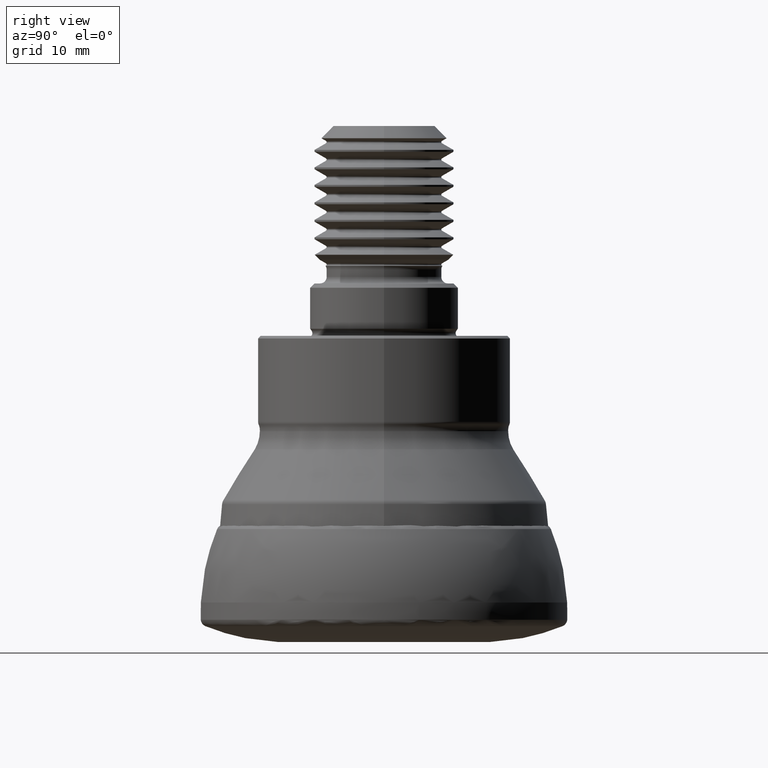
[diagram: clean part render]
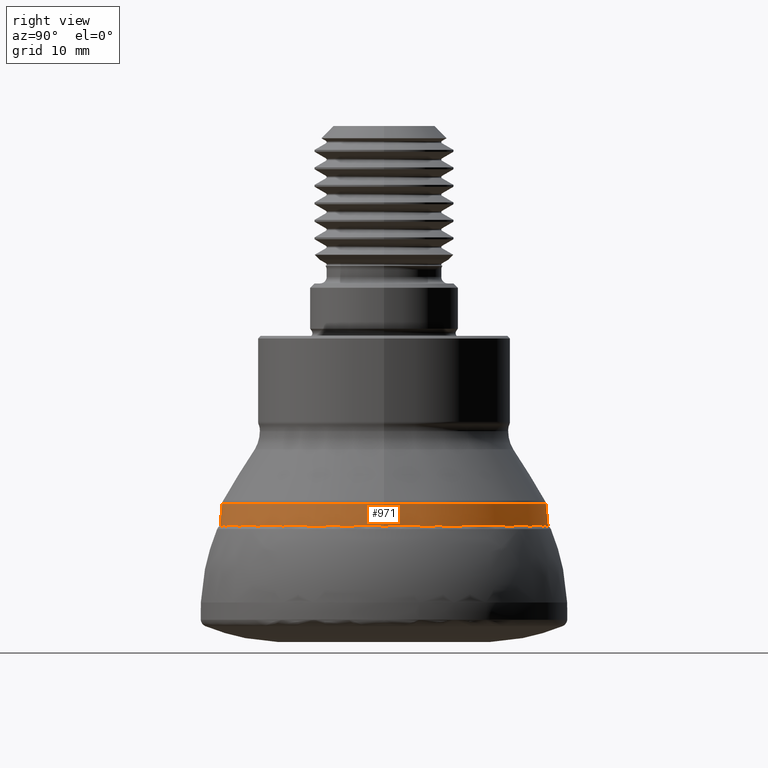
[diagram: same view with one face highlighted and labeled with its STEP entity id]
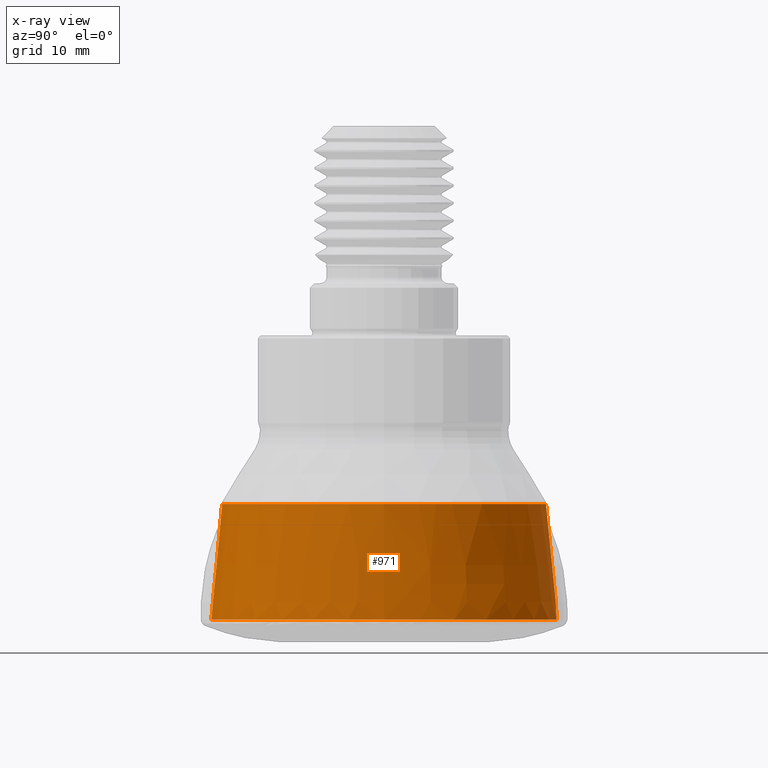
[diagram: x-ray of the same camera — body ghosted, the highlighted face saturated]
A machine part, right view. The second image highlights one B-rep face of the part: STEP entity #971.
The next image is the same camera in x-ray: the body ghosted, the highlighted face saturated — about 0% of this face is hidden behind the body in this view.
In plain terms, the highlighted face is a freeform B-spline surface patch.
Its self-contained STEP definition (entity closure, byte-faithful):
#51 = CARTESIAN_POINT ( 'NONE',  ( -16.54188182131372600, 9.169314821616234600, -11.81882638711169900 ) ) ;
#65 = CARTESIAN_POINT ( 'NONE',  ( -1.831734595264321800, -43.07584216059979100, -8.089627455695481500 ) ) ;
#113 = CARTESIAN_POINT ( 'NONE',  ( 16.83346883224350400, -9.330944141060667700, -8.440132372900899700 ) ) ;
#137 = CARTESIAN_POINT ( 'NONE',  ( 34.88051146454619600, 23.91444882101121300, -11.81882638711169900 ) ) ;
#155 = CARTESIAN_POINT ( 'NONE',  ( -1.818520954020169000, -42.76510460829735600, -9.491696102962970700 ) ) ;
#171 = CARTESIAN_POINT ( 'NONE',  ( -35.30319625904998300, -24.20424600176228200, -9.491696102962970700 ) ) ;
#190 = FACE_OUTER_BOUND ( 'NONE', #2040, .T. ) ;
#214 = CARTESIAN_POINT ( 'NONE',  ( -17.11068818606537800, 9.484609338122021800, -5.285878188508533500 ) ) ;
#225 = CARTESIAN_POINT ( 'NONE',  ( 36.14558660712813100, 24.78179776406671300, -4.935445406074369300 ) ) ;
#235 = CARTESIAN_POINT ( 'NONE',  ( 35.88373461033108900, 24.60226925622222500, -6.337224115881582500 ) ) ;
#256 = CARTESIAN_POINT ( 'NONE',  ( 17.29382868640292900, -9.586125775146712200, -3.235296481638796800 ) ) ;
#270 = FACE_OUTER_BOUND ( 'NONE', #1254, .T. ) ;
#272 = CARTESIAN_POINT ( 'NONE',  ( -36.07990686230942100, -24.73676703400873600, -5.285878188508533500 ) ) ;
#390 = CARTESIAN_POINT ( 'NONE',  ( 16.21216645826516300, -8.986550611475376400, -15.77319747129725000 ) ) ;
#425 = EDGE_CURVE ( 'NONE', #719, #719, #3025, .T. ) ;
#493 = CARTESIAN_POINT ( 'NONE',  ( -17.04859728656652600, 9.450191790516964100, -5.986767523697309900 ) ) ;
#502 = VERTEX_POINT ( 'NONE', #3206 ) ;
#511 = CARTESIAN_POINT ( 'NONE',  ( -16.95597832890527100, 9.398852263949208900, -7.038161305078444800 ) ) ;
#524 = CARTESIAN_POINT ( 'NONE',  ( -35.94898086760045400, -24.64700278261608800, -5.986767523697309000 ) ) ;
#534 = CARTESIAN_POINT ( 'NONE',  ( 1.878422863890495000, 44.17378314795257000, -3.235296481638797200 ) ) ;
#558 = CARTESIAN_POINT ( 'NONE',  ( -1.851786294467402800, -43.54738636365002700, -5.986767523697309000 ) ) ;
#641 = CARTESIAN_POINT ( 'NONE',  ( 1.821812629461055300, 42.84251303422447400, -9.141166674759201500 ) ) ;
#710 = CARTESIAN_POINT ( 'NONE',  ( 16.54188182131372600, -9.169314821616234600, -11.81882638711169900 ) ) ;
#719 = VERTEX_POINT ( 'NONE', #3395 ) ;
#799 = CARTESIAN_POINT ( 'NONE',  ( -17.01765462455511000, 9.433039992887991300, -6.337224115881582500 ) ) ;
#807 = CARTESIAN_POINT ( 'NONE',  ( 17.04859728656652600, -9.450191790516964100, -5.986767523697309900 ) ) ;
#814 = CARTESIAN_POINT ( 'NONE',  ( 1.858530490178665700, 43.70598571025277600, -5.285878188508533500 ) ) ;
#842 = CARTESIAN_POINT ( 'NONE',  ( 1.848425361220873400, 43.46834924199820400, -6.337224115881582500 ) ) ;
#887 = CARTESIAN_POINT ( 'NONE',  ( 1.778633764958150500, 41.82710067218809500, -13.79580889829491900 ) ) ;
#899 = CARTESIAN_POINT ( 'NONE',  ( -16.21216645826516300, 8.986550611475376400, -15.77319747129725000 ) ) ;
#939 = CARTESIAN_POINT ( 'NONE',  ( 35.36709800505620600, 24.24805771696583500, -9.141166674759201500 ) ) ;
#971 = ADVANCED_FACE ( 'NONE', ( #190, #270 ), #1577, .F. ) ;
#984 = DIRECTION ( 'NONE',  ( 1.000000000000000000, 0.0000000000000000000, 0.0000000000000000000 ) ) ;
#1025 = CARTESIAN_POINT ( 'NONE',  ( -35.55971448563842300, -24.38011762014841800, -8.089627455695481500 ) ) ;
#1034 = CARTESIAN_POINT ( 'NONE',  ( -35.49535711436484300, -24.33599352342633900, -8.440132372900899700 ) ) ;
#1064 = CARTESIAN_POINT ( 'NONE',  ( -1.885040101670128100, -44.32939689836793200, -2.560497283552584800 ) ) ;
#1077 = CARTESIAN_POINT ( 'NONE',  ( -36.59454157969641100, -25.08960605768465200, -2.560497283552584800 ) ) ;
#1089 = CARTESIAN_POINT ( 'NONE',  ( -17.11068818606537800, 9.484609338122021800, -5.285878188508533500 ) ) ;
#1101 = CARTESIAN_POINT ( 'NONE',  ( 16.92524469167542700, -9.381816330648641500, -7.388641942850842500 ) ) ;
#1109 = CARTESIAN_POINT ( 'NONE',  ( 17.23326974134722900, -9.552557403755910700, -3.910138665869759200 ) ) ;
#1116 = CARTESIAN_POINT ( 'NONE',  ( -17.35475073901314500, 9.619895420341636700, -2.560497283552584300 ) ) ;
#1152 = CIRCLE ( 'NONE', #2233, 18.53624646909687400 ) ;
#1178 = CARTESIAN_POINT ( 'NONE',  ( -35.68887735297271700, -24.46867305270221500, -7.388641942850842500 ) ) ;
#1235 = CARTESIAN_POINT ( 'NONE',  ( -34.18526768121591200, -23.43778230505494900, -15.77319747129724600 ) ) ;
#1254 = EDGE_LOOP ( 'NONE', ( #1959 ) ) ;
#1270 = CARTESIAN_POINT ( 'NONE',  ( -1.821812629461055300, -42.84251303422447400, -9.141166674759201500 ) ) ;
#1310 = CARTESIAN_POINT ( 'NONE',  ( -1.871845066164591800, -44.01909688645036300, -3.910138665869759200 ) ) ;
#1321 = CARTESIAN_POINT ( 'NONE',  ( -1.861913753023504600, -43.78554794414253600, -4.935445406074369300 ) ) ;
#1335 = CARTESIAN_POINT ( 'NONE',  ( 17.11068818606537800, -9.484609338122021800, -5.285878188508533500 ) ) ;
#1355 = CARTESIAN_POINT ( 'NONE',  ( 17.35475073901314500, -9.619895420341636700, -2.560497283552584300 ) ) ;
#1370 = CARTESIAN_POINT ( 'NONE',  ( -1.858530490178665700, -43.70598571025277600, -5.285878188508533500 ) ) ;
#1421 = ORIENTED_EDGE ( 'NONE', *, *, #425, .F. ) ;
#1427 = CARTESIAN_POINT ( 'NONE',  ( -16.74233765251490900, 9.280429303267538900, -9.491696102962970700 ) ) ;
#1439 = CARTESIAN_POINT ( 'NONE',  ( 16.86398994518705400, -9.347862270225688200, -8.089627455695481500 ) ) ;
#1477 = CARTESIAN_POINT ( 'NONE',  ( -16.86398994518705400, 9.347862270225688200, -8.089627455695481500 ) ) ;
#1492 = DIRECTION ( 'NONE',  ( 1.000000000000000000, 0.0000000000000000000, 0.0000000000000000000 ) ) ;
#1504 = CARTESIAN_POINT ( 'NONE',  ( -1.838387969621855500, -43.23230571399949400, -7.388641942850842500 ) ) ;
#1515 = CARTESIAN_POINT ( 'NONE',  ( -16.77264268779757800, 9.297227658629315900, -9.141166674759205100 ) ) ;
#1577 =( BOUNDED_SURFACE ( )  B_SPLINE_SURFACE ( 3, 3, ( 
 ( #2828, #1235, #2570, #390, #1983, #2929, #899 ),
 ( #3200, #2535, #2345, #1676, #2034, #887, #2634 ),
 ( #51, #3172, #2332, #710, #137, #3449, #3113 ),
 ( #1427, #171, #155, #3499, #2019, #3355, #3380 ),
 ( #1515, #2291, #1270, #1711, #939, #641, #3341 ),
 ( #1722, #1034, #3406, #113, #2556, #2087, #2044 ),
 ( #1477, #1025, #65, #1439, #2367, #2920, #2544 ),
 ( #2072, #1178, #1504, #1101, #3031, #3308, #1601 ),
 ( #2765, #3562, #2693, #2726, #3277, #3245, #511 ),
 ( #1883, #2426, #1626, #2459, #235, #842, #799 ),
 ( #3573, #524, #558, #807, #2981, #2993, #493 ),
 ( #1089, #272, #1370, #1335, #3264, #814, #214 ),
 ( #2709, #2412, #1321, #1858, #225, #3256, #2720 ),
 ( #2128, #2967, #1310, #1109, #2183, #3007, #2156 ),
 ( #2169, #2436, #2736, #256, #3584, #534, #2140 ),
 ( #2751, #1077, #1064, #1355, #1636, #2193, #1116 ) ),
 .UNSPECIFIED., .F., .T., .T. ) 
 B_SPLINE_SURFACE_WITH_KNOTS ( ( 4, 2, 2, 2, 2, 2, 2, 4 ),
 ( 4, 3, 4 ),
 ( 0.0000000000000000000, 0.4487742673150499400, 0.5283629765766211200, 0.6079516855654995000, 0.6875403942901543400, 0.7671291027588478300, 0.8467178109796342800, 1.000000000000000000 ),
 ( 0.0000000000000000000, 0.5000000000000000000, 1.000000000000000000 ),
 .UNSPECIFIED. ) 
 GEOMETRIC_REPRESENTATION_ITEM ( )  RATIONAL_B_SPLINE_SURFACE ( (
 ( 1.000000000000000000, 0.3333333333333333100, 0.3333333333333333100, 1.000000000000000000, 0.3333333333333333100, 0.3333333333333333100, 1.000000000000000000),
 ( 1.000000000000000000, 0.3333333333333333100, 0.3333333333333333100, 1.000000000000000000, 0.3333333333333333100, 0.3333333333333333100, 1.000000000000000000),
 ( 1.000000000000000000, 0.3333333333333333100, 0.3333333333333333100, 1.000000000000000000, 0.3333333333333333100, 0.3333333333333333100, 1.000000000000000000),
 ( 1.000000000000000000, 0.3333333333333333100, 0.3333333333333333100, 1.000000000000000000, 0.3333333333333333100, 0.3333333333333333100, 1.000000000000000000),
 ( 1.000000000000000000, 0.3333333333333333100, 0.3333333333333333100, 1.000000000000000000, 0.3333333333333333100, 0.3333333333333333100, 1.000000000000000000),
 ( 1.000000000000000000, 0.3333333333333333100, 0.3333333333333333100, 1.000000000000000000, 0.3333333333333333100, 0.3333333333333333100, 1.000000000000000000),
 ( 1.000000000000000000, 0.3333333333333333100, 0.3333333333333333100, 1.000000000000000000, 0.3333333333333333100, 0.3333333333333333100, 1.000000000000000000),
 ( 1.000000000000000000, 0.3333333333333333100, 0.3333333333333333100, 1.000000000000000000, 0.3333333333333333100, 0.3333333333333333100, 1.000000000000000000),
 ( 1.000000000000000000, 0.3333333333333333100, 0.3333333333333333100, 1.000000000000000000, 0.3333333333333333100, 0.3333333333333333100, 1.000000000000000000),
 ( 1.000000000000000000, 0.3333333333333333100, 0.3333333333333333100, 1.000000000000000000, 0.3333333333333333100, 0.3333333333333333100, 1.000000000000000000),
 ( 1.000000000000000000, 0.3333333333333333100, 0.3333333333333333100, 1.000000000000000000, 0.3333333333333333100, 0.3333333333333333100, 1.000000000000000000),
 ( 1.000000000000000000, 0.3333333333333333100, 0.3333333333333333100, 1.000000000000000000, 0.3333333333333333100, 0.3333333333333333100, 1.000000000000000000),
 ( 1.000000000000000000, 0.3333333333333333100, 0.3333333333333333100, 1.000000000000000000, 0.3333333333333333100, 0.3333333333333333100, 1.000000000000000000),
 ( 1.000000000000000000, 0.3333333333333333100, 0.3333333333333333100, 1.000000000000000000, 0.3333333333333333100, 0.3333333333333333100, 1.000000000000000000),
 ( 1.000000000000000000, 0.3333333333333333100, 0.3333333333333333100, 1.000000000000000000, 0.3333333333333333100, 0.3333333333333333100, 1.000000000000000000),
 ( 1.000000000000000000, 0.3333333333333333100, 0.3333333333333333100, 1.000000000000000000, 0.3333333333333333100, 0.3333333333333333100, 1.000000000000000000) ) ) 
 REPRESENTATION_ITEM ( '' )  SURFACE ( )  );
#1601 = CARTESIAN_POINT ( 'NONE',  ( -16.92524469167542700, 9.381816330648641500, -7.388641942850842500 ) ) ;
#1626 = CARTESIAN_POINT ( 'NONE',  ( -1.848425361220873400, -43.46834924199820400, -6.337224115881582500 ) ) ;
#1636 = CARTESIAN_POINT ( 'NONE',  ( 36.59454157969641100, 25.08960605768465200, -2.560497283552584800 ) ) ;
#1676 = CARTESIAN_POINT ( 'NONE',  ( 16.37511351588360900, -9.076873640420878100, -13.79580889829491700 ) ) ;
#1711 = CARTESIAN_POINT ( 'NONE',  ( 16.77264268779757800, -9.297227658629315900, -9.141166674759205100 ) ) ;
#1722 = CARTESIAN_POINT ( 'NONE',  ( -16.83346883224350400, 9.330944141060667700, -8.440132372900899700 ) ) ;
#1858 = CARTESIAN_POINT ( 'NONE',  ( 17.14183642705231100, -9.501875090037907900, -4.935445406074369300 ) ) ;
#1883 = CARTESIAN_POINT ( 'NONE',  ( -17.01765462455511000, 9.433039992887991300, -6.337224115881582500 ) ) ;
#1959 = ORIENTED_EDGE ( 'NONE', *, *, #2595, .T. ) ;
#1983 = CARTESIAN_POINT ( 'NONE',  ( 34.18526768121591200, 23.43778230505494900, -15.77319747129724600 ) ) ;
#2019 = CARTESIAN_POINT ( 'NONE',  ( 35.30319625904998300, 24.20424600176228200, -9.491696102962970700 ) ) ;
#2034 = CARTESIAN_POINT ( 'NONE',  ( 34.52886079672536100, 23.67335339134632800, -13.79580889829491900 ) ) ;
#2040 = EDGE_LOOP ( 'NONE', ( #1421 ) ) ;
#2044 = CARTESIAN_POINT ( 'NONE',  ( -16.83346883224350400, 9.330944141060667700, -8.440132372900899700 ) ) ;
#2048 = CARTESIAN_POINT ( 'NONE',  ( 0.0000000000000000000, 0.0000000000000000000, -2.560497283552476900 ) ) ;
#2072 = CARTESIAN_POINT ( 'NONE',  ( -16.92524469167542700, 9.381816330648641500, -7.388641942850842500 ) ) ;
#2087 = CARTESIAN_POINT ( 'NONE',  ( 1.828419449877830800, 42.99788180554767800, -8.440132372900899700 ) ) ;
#2128 = CARTESIAN_POINT ( 'NONE',  ( -17.23326974134722900, 9.552557403755910700, -3.910138665869759200 ) ) ;
#2134 = DIRECTION ( 'NONE',  ( -0.0000000000000000000, -0.0000000000000000000, 1.000000000000000000 ) ) ;
#2140 = CARTESIAN_POINT ( 'NONE',  ( -17.29382868640292900, 9.586125775146712200, -3.235296481638796800 ) ) ;
#2156 = CARTESIAN_POINT ( 'NONE',  ( -17.23326974134722900, 9.552557403755910700, -3.910138665869759200 ) ) ;
#2169 = CARTESIAN_POINT ( 'NONE',  ( -17.29382868640292900, 9.586125775146712200, -3.235296481638796800 ) ) ;
#2183 = CARTESIAN_POINT ( 'NONE',  ( 36.33838454885905400, 24.91398207893854900, -3.910138665869759200 ) ) ;
#2193 = CARTESIAN_POINT ( 'NONE',  ( 1.885040101670128100, 44.32939689836793200, -2.560497283552584800 ) ) ;
#2233 = AXIS2_PLACEMENT_3D ( 'NONE', #3362, #3052, #1492 ) ;
#2291 = CARTESIAN_POINT ( 'NONE',  ( -35.36709800505620600, -24.24805771696583500, -9.141166674759201500 ) ) ;
#2332 = CARTESIAN_POINT ( 'NONE',  ( -1.796747821918742700, -42.25307846424368600, -11.81882638711169900 ) ) ;
#2345 = CARTESIAN_POINT ( 'NONE',  ( -1.778633764958150500, -41.82710067218809500, -13.79580889829491900 ) ) ;
#2367 = CARTESIAN_POINT ( 'NONE',  ( 35.55971448563842300, 24.38011762014841800, -8.089627455695481500 ) ) ;
#2412 = CARTESIAN_POINT ( 'NONE',  ( -36.14558660712813100, -24.78179776406671300, -4.935445406074369300 ) ) ;
#2426 = CARTESIAN_POINT ( 'NONE',  ( -35.88373461033108900, -24.60226925622222500, -6.337224115881582500 ) ) ;
#2436 = CARTESIAN_POINT ( 'NONE',  ( -36.46608023669635700, -25.00153159765914500, -3.235296481638797200 ) ) ;
#2459 = CARTESIAN_POINT ( 'NONE',  ( 17.01765462455511000, -9.433039992887991300, -6.337224115881582500 ) ) ;
#2535 = CARTESIAN_POINT ( 'NONE',  ( -34.52886079672536100, -23.67335339134632800, -13.79580889829491900 ) ) ;
#2544 = CARTESIAN_POINT ( 'NONE',  ( -16.86398994518705400, 9.347862270225688200, -8.089627455695481500 ) ) ;
#2556 = CARTESIAN_POINT ( 'NONE',  ( 35.49535711436484300, 24.33599352342633900, -8.440132372900899700 ) ) ;
#2570 = CARTESIAN_POINT ( 'NONE',  ( -1.760934764685591500, -41.41088352800570500, -15.77319747129724600 ) ) ;
#2595 = EDGE_CURVE ( 'NONE', #502, #502, #1152, .T. ) ;
#2634 = CARTESIAN_POINT ( 'NONE',  ( -16.37511351588360900, 9.076873640420878100, -13.79580889829491700 ) ) ;
#2693 = CARTESIAN_POINT ( 'NONE',  ( -1.841726198993146600, -43.31080892175975100, -7.038161305078444000 ) ) ;
#2709 = CARTESIAN_POINT ( 'NONE',  ( -17.14183642705231100, 9.501875090037907900, -4.935445406074369300 ) ) ;
#2720 = CARTESIAN_POINT ( 'NONE',  ( -17.14183642705231100, 9.501875090037907900, -4.935445406074369300 ) ) ;
#2726 = CARTESIAN_POINT ( 'NONE',  ( 16.95597832890527100, -9.398852263949208900, -7.038161305078444800 ) ) ;
#2736 = CARTESIAN_POINT ( 'NONE',  ( -1.878422863890495000, -44.17378314795257000, -3.235296481638797200 ) ) ;
#2751 = CARTESIAN_POINT ( 'NONE',  ( -17.35475073901314500, 9.619895420341636700, -2.560497283552584300 ) ) ;
#2765 = CARTESIAN_POINT ( 'NONE',  ( -16.95597832890527100, 9.398852263949208900, -7.038161305078444800 ) ) ;
#2807 = AXIS2_PLACEMENT_3D ( 'NONE', #2048, #2134, #984 ) ;
#2828 = CARTESIAN_POINT ( 'NONE',  ( -16.21216645826516300, 8.986550611475376400, -15.77319747129725000 ) ) ;
#2920 = CARTESIAN_POINT ( 'NONE',  ( 1.831734595264321800, 43.07584216059979100, -8.089627455695481500 ) ) ;
#2929 = CARTESIAN_POINT ( 'NONE',  ( 1.760934764685591500, 41.41088352800570500, -15.77319747129724600 ) ) ;
#2967 = CARTESIAN_POINT ( 'NONE',  ( -36.33838454885905400, -24.91398207893854900, -3.910138665869759200 ) ) ;
#2981 = CARTESIAN_POINT ( 'NONE',  ( 35.94898086760045400, 24.64700278261608800, -5.986767523697309000 ) ) ;
#2993 = CARTESIAN_POINT ( 'NONE',  ( 1.851786294467402800, 43.54738636365002700, -5.986767523697309000 ) ) ;
#3007 = CARTESIAN_POINT ( 'NONE',  ( 1.871845066164591800, 44.01909688645036300, -3.910138665869759200 ) ) ;
#3025 = CIRCLE ( 'NONE', #2807, 19.84262485437820100 ) ;
#3031 = CARTESIAN_POINT ( 'NONE',  ( 35.68887735297271700, 24.46867305270221500, -7.388641942850842500 ) ) ;
#3052 = DIRECTION ( 'NONE',  ( -0.0000000000000000000, -0.0000000000000000000, 1.000000000000000000 ) ) ;
#3113 = CARTESIAN_POINT ( 'NONE',  ( -16.54188182131372600, 9.169314821616234600, -11.81882638711169900 ) ) ;
#3172 = CARTESIAN_POINT ( 'NONE',  ( -34.88051146454619600, -23.91444882101121300, -11.81882638711169900 ) ) ;
#3200 = CARTESIAN_POINT ( 'NONE',  ( -16.37511351588360900, 9.076873640420878100, -13.79580889829491700 ) ) ;
#3206 = CARTESIAN_POINT ( 'NONE',  ( 18.53624646909687400, 0.0000000000000000000, -15.77319747129725000 ) ) ;
#3245 = CARTESIAN_POINT ( 'NONE',  ( 1.841726198993146600, 43.31080892175975100, -7.038161305078444000 ) ) ;
#3256 = CARTESIAN_POINT ( 'NONE',  ( 1.861913753023504600, 43.78554794414253600, -4.935445406074369300 ) ) ;
#3264 = CARTESIAN_POINT ( 'NONE',  ( 36.07990686230942100, 24.73676703400873600, -5.285878188508533500 ) ) ;
#3277 = CARTESIAN_POINT ( 'NONE',  ( 35.75368285680369200, 24.51310439386133000, -7.038161305078444000 ) ) ;
#3308 = CARTESIAN_POINT ( 'NONE',  ( 1.838387969621855500, 43.23230571399949400, -7.388641942850842500 ) ) ;
#3341 = CARTESIAN_POINT ( 'NONE',  ( -16.77264268779757800, 9.297227658629315900, -9.141166674759205100 ) ) ;
#3355 = CARTESIAN_POINT ( 'NONE',  ( 1.818520954020169000, 42.76510460829735600, -9.491696102962970700 ) ) ;
#3362 = CARTESIAN_POINT ( 'NONE',  ( 0.0000000000000000000, 0.0000000000000000000, -15.77319747129725000 ) ) ;
#3380 = CARTESIAN_POINT ( 'NONE',  ( -16.74233765251490900, 9.280429303267538900, -9.491696102962970700 ) ) ;
#3395 = CARTESIAN_POINT ( 'NONE',  ( 19.84262485437820100, 0.0000000000000000000, -2.560497283552476900 ) ) ;
#3406 = CARTESIAN_POINT ( 'NONE',  ( -1.828419449877830800, -42.99788180554767800, -8.440132372900899700 ) ) ;
#3449 = CARTESIAN_POINT ( 'NONE',  ( 1.796747821918742700, 42.25307846424368600, -11.81882638711169900 ) ) ;
#3499 = CARTESIAN_POINT ( 'NONE',  ( 16.74233765251490900, -9.280429303267538900, -9.491696102962970700 ) ) ;
#3562 = CARTESIAN_POINT ( 'NONE',  ( -35.75368285680369200, -24.51310439386133000, -7.038161305078444000 ) ) ;
#3573 = CARTESIAN_POINT ( 'NONE',  ( -17.04859728656652600, 9.450191790516964100, -5.986767523697309900 ) ) ;
#3584 = CARTESIAN_POINT ( 'NONE',  ( 36.46608023669635700, 25.00153159765914500, -3.235296481638797200 ) ) ;